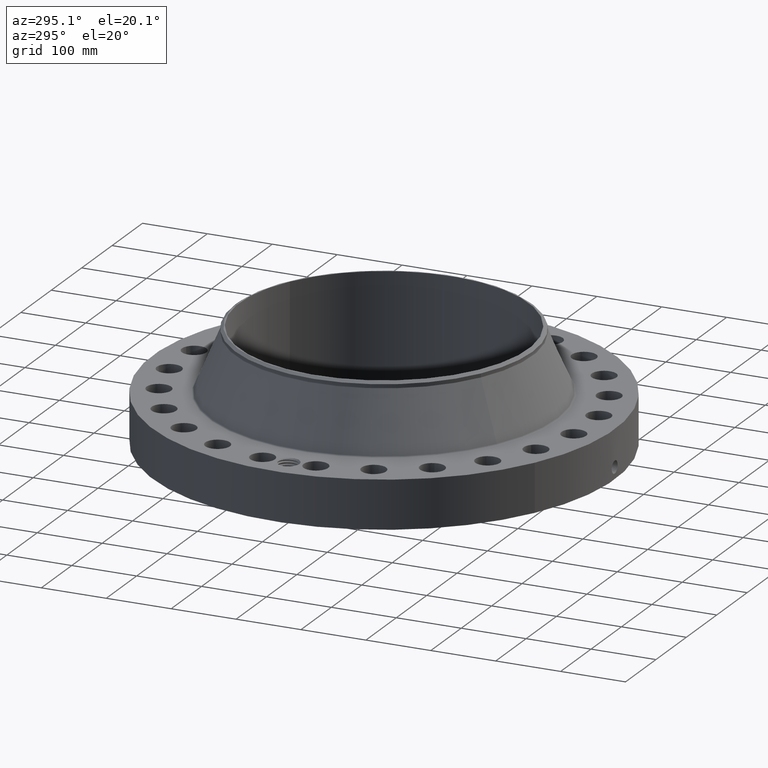
[diagram: clean part render]
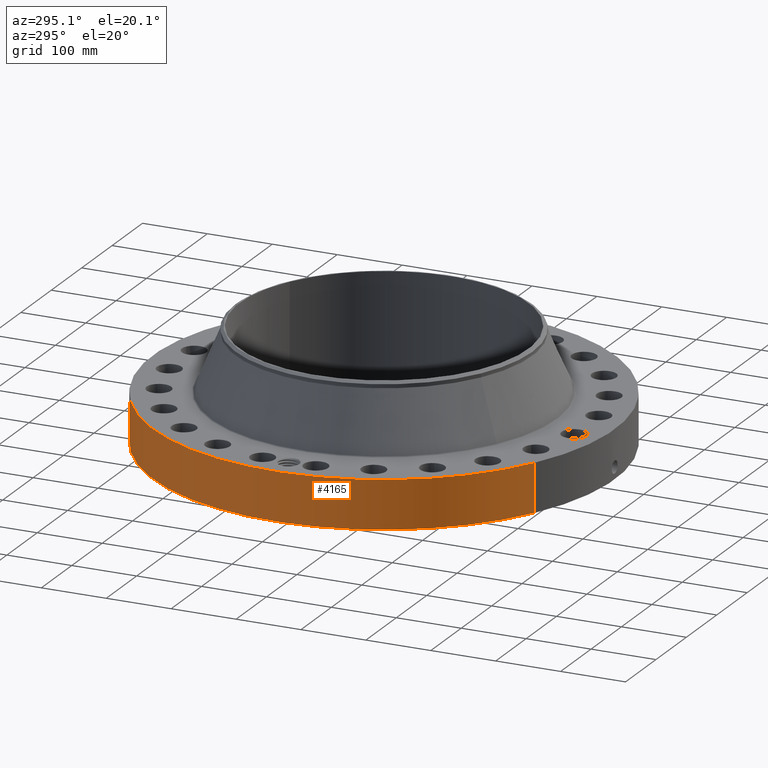
[diagram: same view with one face highlighted and labeled with its STEP entity id]
A machine part, auxiliary view. The second image highlights one B-rep face of the part: STEP entity #4165.
In plain terms, the highlighted cylindrical surface (partial cylindrical patch) has radius 355.6 mm, axis along (0, 0, -1).
Its self-contained STEP definition (entity closure, byte-faithful):
#2927=AXIS2_PLACEMENT_3D('Circle Axis2P3D',#2925,#2926,$) ;
#4051=AXIS2_PLACEMENT_3D('Cylinder Axis2P3D',#4048,#4049,#4050) ;
#4055=AXIS2_PLACEMENT_3D('Circle Axis2P3D',#4053,#4054,$) ;
#2920=CARTESIAN_POINT('Vertex',(6.71195754049,12.2861558665,2.93200000001)) ;
#2922=CARTESIAN_POINT('Vertex',(-6.71195754049,-12.2861558665,2.93200000001)) ;
#2925=CARTESIAN_POINT('Axis2P3D Location',(0.,0.,2.93200000001)) ;
#4048=CARTESIAN_POINT('Axis2P3D Location',(0.,0.,3.40600000001)) ;
#4053=CARTESIAN_POINT('Axis2P3D Location',(0.,0.,1.67844740731E-015)) ;
#4057=CARTESIAN_POINT('Vertex',(-6.71195754049,-12.2861558665,1.67844740731E-015)) ;
#4059=CARTESIAN_POINT('Vertex',(6.71195754049,12.2861558665,1.67844740731E-015)) ;
#4062=CARTESIAN_POINT('Line Origine',(-6.71195754049,-12.2861558665,1.46600000001)) ;
#4067=CARTESIAN_POINT('Line Origine',(6.71195754049,12.2861558665,1.46600000001)) ;
#4079=CARTESIAN_POINT('Control Point',(-0.000716127765172,13.9999999817,1.1041184611)) ;
#4080=CARTESIAN_POINT('Control Point',(-0.0190757983389,13.9999990426,1.10408137441)) ;
#4081=CARTESIAN_POINT('Control Point',(-0.0374322413143,13.9999616996,1.10261237373)) ;
#4082=CARTESIAN_POINT('Control Point',(-0.0555638915009,13.9998897373,1.09972937867)) ;
#4083=CARTESIAN_POINT('Vertex',(-0.000715743932358,13.9999999818,1.10411851041)) ;
#4085=CARTESIAN_POINT('Vertex',(-0.0555549451581,13.9998900259,1.09973081964)) ;
#4089=CARTESIAN_POINT('Control Point',(-0.0555548490816,13.9998897731,1.09973026908)) ;
#4090=CARTESIAN_POINT('Control Point',(-0.0958938296653,13.9997296986,1.09526506922)) ;
#4091=CARTESIAN_POINT('Control Point',(-0.135581536139,13.9993911749,1.08345851699)) ;
#4092=CARTESIAN_POINT('Control Point',(-0.172124900836,13.9989418536,1.06510326735)) ;
#4093=CARTESIAN_POINT('Vertex',(-0.172124900836,13.9989418536,1.06510326735)) ;
#4097=CARTESIAN_POINT('Control Point',(-0.0309215004358,13.9999658522,0.341182267607)) ;
#4098=CARTESIAN_POINT('Control Point',(-0.10016639452,13.9998129121,0.349950591882)) ;
#4099=CARTESIAN_POINT('Control Point',(-0.16707920328,13.9992370076,0.374143798891)) ;
#4100=CARTESIAN_POINT('Control Point',(-0.226861916915,13.9983036346,0.41294641872)) ;
#4101=CARTESIAN_POINT('Control Point',(-0.299410362566,13.9968606616,0.48699265065)) ;
#4102=CARTESIAN_POINT('Control Point',(-0.344252863732,13.9957762929,0.577303564911)) ;
#4103=CARTESIAN_POINT('Control Point',(-0.355712949588,13.9954842687,0.60801091676)) ;
#4104=CARTESIAN_POINT('Control Point',(-0.374230289493,13.9950011291,0.679287869999)) ;
#4105=CARTESIAN_POINT('Control Point',(-0.37590203947,13.9949509828,0.752614503434)) ;
#4106=CARTESIAN_POINT('Control Point',(-0.37152017949,13.9950715433,0.79322277755)) ;
#4107=CARTESIAN_POINT('Control Point',(-0.3490383611,13.9956736799,0.885717409792)) ;
#4108=CARTESIAN_POINT('Control Point',(-0.299568268458,13.996842528,0.967115530402)) ;
#4109=CARTESIAN_POINT('Control Point',(-0.263036006092,13.9976212518,1.00806553026)) ;
#4110=CARTESIAN_POINT('Control Point',(-0.219778089784,13.9983559307,1.0411676964)) ;
#4111=CARTESIAN_POINT('Control Point',(-0.172124900836,13.9989418536,1.06510326735)) ;
#4112=CARTESIAN_POINT('Vertex',(-0.0309215004358,13.9999658522,0.341182267607)) ;
#4116=CARTESIAN_POINT('Control Point',(-0.0309215004358,13.9999658522,0.341182267607)) ;
#4117=CARTESIAN_POINT('Control Point',(-0.0206093350718,13.9999886285,0.340873555469)) ;
#4118=CARTESIAN_POINT('Control Point',(-0.0102899336327,14.0000000021,0.340937863188)) ;
#4119=CARTESIAN_POINT('Control Point',(2.72878355401E-006,14.0000000001,0.341374667805)) ;
#4120=CARTESIAN_POINT('Vertex',(2.72878354121E-006,14.0000000001,0.341374667805)) ;
#4124=CARTESIAN_POINT('Control Point',(0.192703589045,13.9986736989,0.39726939377)) ;
#4125=CARTESIAN_POINT('Control Point',(0.14903557021,13.9992748261,0.371955714082)) ;
#4126=CARTESIAN_POINT('Control Point',(0.101122045121,13.9997535108,0.35375040722)) ;
#4127=CARTESIAN_POINT('Control Point',(0.0508078024433,13.9999999902,0.343530755533)) ;
#4128=CARTESIAN_POINT('Control Point',(2.72878355399E-006,14.0000000001,0.341374667805)) ;
#4129=CARTESIAN_POINT('Vertex',(0.192703589045,13.9986736989,0.39726939377)) ;
#4133=CARTESIAN_POINT('Control Point',(0.192703589045,13.9986736989,0.39726939377)) ;
#4134=CARTESIAN_POINT('Control Point',(0.249588141116,13.9978906349,0.430244491915)) ;
#4135=CARTESIAN_POINT('Control Point',(0.299738781304,13.9969112714,0.474526544599)) ;
#4136=CARTESIAN_POINT('Control Point',(0.340016084283,13.9959144375,0.528593013715)) ;
#4137=CARTESIAN_POINT('Control Point',(0.384401903701,13.9947324549,0.626721002426)) ;
#4138=CARTESIAN_POINT('Control Point',(0.393085692121,13.9944790205,0.732012567469)) ;
#4139=CARTESIAN_POINT('Control Point',(0.391005823832,13.9945390528,0.772144914977)) ;
#4140=CARTESIAN_POINT('Control Point',(0.376915952177,13.9949387529,0.847014945362)) ;
#4141=CARTESIAN_POINT('Control Point',(0.344864409188,13.995765604,0.91542258758)) ;
#4142=CARTESIAN_POINT('Control Point',(0.325823254922,13.9962322051,0.945842823989)) ;
#4143=CARTESIAN_POINT('Control Point',(0.264021728335,13.9976173448,1.02245044818)) ;
#4144=CARTESIAN_POINT('Control Point',(0.180761909165,13.998996639,1.07554895626)) ;
#4145=CARTESIAN_POINT('Control Point',(0.121808147183,13.9996739848,1.0976552982)) ;
#4146=CARTESIAN_POINT('Control Point',(0.0604215643395,14.0000001117,1.1071166251)) ;
#4147=CARTESIAN_POINT('Control Point',(-2.58579355216E-005,14.,1.1041529843)) ;
#4148=CARTESIAN_POINT('Vertex',(-2.58579355465E-005,14.,1.1041529843)) ;
#4152=CARTESIAN_POINT('Control Point',(-0.000715743922712,13.9999999818,1.10411851039)) ;
#4153=CARTESIAN_POINT('Control Point',(-0.000370825420103,13.9999999994,1.1041360711)) ;
#4154=CARTESIAN_POINT('Control Point',(-2.58579407E-005,14.,1.1041529843)) ;
#2926=DIRECTION('Axis2P3D Direction',(0.,0.,-0.0393700787402)) ;
#4049=DIRECTION('Axis2P3D Direction',(0.,0.,-0.0393700787402)) ;
#4050=DIRECTION('Axis2P3D XDirection',(0.0188750212049,0.0345504945626,0.)) ;
#4054=DIRECTION('Axis2P3D Direction',(0.,0.,-0.0393700787402)) ;
#4063=DIRECTION('Vector Direction',(0.,0.,-0.0393700787402)) ;
#4068=DIRECTION('Vector Direction',(0.,0.,-0.0393700787402)) ;
#4064=VECTOR('Line Direction',#4063,0.0393700787402) ;
#4069=VECTOR('Line Direction',#4068,0.0393700787402) ;
#4073=ORIENTED_EDGE('',*,*,#4061,.F.) ;
#4074=ORIENTED_EDGE('',*,*,#4066,.T.) ;
#4075=ORIENTED_EDGE('',*,*,#2929,.T.) ;
#4076=ORIENTED_EDGE('',*,*,#4071,.F.) ;
#4157=ORIENTED_EDGE('',*,*,#4087,.T.) ;
#4158=ORIENTED_EDGE('',*,*,#4095,.T.) ;
#4159=ORIENTED_EDGE('',*,*,#4114,.F.) ;
#4160=ORIENTED_EDGE('',*,*,#4122,.T.) ;
#4161=ORIENTED_EDGE('',*,*,#4131,.F.) ;
#4162=ORIENTED_EDGE('',*,*,#4150,.T.) ;
#4163=ORIENTED_EDGE('',*,*,#4155,.F.) ;
#4164=FACE_BOUND('',#4156,.T.) ;
#4165=ADVANCED_FACE('PartBody',(#4077,#4164),#4052,.T.) ;
#4078=B_SPLINE_CURVE_WITH_KNOTS('',3,(#4079,#4080,#4081,#4082),.UNSPECIFIED.,.F.,.U.,(4,4),(34.6165208752,36.6533523405),.UNSPECIFIED.) ;
#4088=B_SPLINE_CURVE_WITH_KNOTS('',3,(#4089,#4090,#4091,#4092),.UNSPECIFIED.,.F.,.U.,(4,4),(0.,4.5603248192),.UNSPECIFIED.) ;
#4096=B_SPLINE_CURVE_WITH_KNOTS('',5,(#4097,#4098,#4099,#4100,#4101,#4102,#4103,#4104,#4105,#4106,#4107,#4108,#4109,#4110,#4111),.UNSPECIFIED.,.F.,.U.,(6,3,3,3,6),(0.,12.1301119269,17.9857306561,25.3556969156,35.2669365236),.UNSPECIFIED.) ;
#4115=B_SPLINE_CURVE_WITH_KNOTS('',3,(#4116,#4117,#4118,#4119),.UNSPECIFIED.,.F.,.U.,(4,4),(0.,1.0757036039),.UNSPECIFIED.) ;
#4123=B_SPLINE_CURVE_WITH_KNOTS('',4,(#4124,#4125,#4126,#4127,#4128),.UNSPECIFIED.,.F.,.U.,(5,5),(0.,7.07963253464),.UNSPECIFIED.) ;
#4132=B_SPLINE_CURVE_WITH_KNOTS('',5,(#4133,#4134,#4135,#4136,#4137,#4138,#4139,#4140,#4141,#4142,#4143,#4144,#4145,#4146,#4147),.UNSPECIFIED.,.F.,.U.,(6,3,3,3,6),(0.,11.5279364473,18.5943609696,25.0081378992,36.3070156046),.UNSPECIFIED.) ;
#4151=B_SPLINE_CURVE_WITH_KNOTS('',2,(#4152,#4153,#4154),.UNSPECIFIED.,.F.,.U.,(3,3),(1.02463481524,1.05042744884),.UNSPECIFIED.) ;
#2928=CIRCLE('generated circle',#2927,14.0000000001) ;
#4056=CIRCLE('generated circle',#4055,14.0000000001) ;
#4052=CYLINDRICAL_SURFACE('generated cylinder',#4051,14.0000000001) ;
#2929=EDGE_CURVE('',#2923,#2921,#2928,.T.) ;
#4061=EDGE_CURVE('',#4058,#4060,#4056,.T.) ;
#4066=EDGE_CURVE('',#4058,#2923,#4065,.F.) ;
#4071=EDGE_CURVE('',#4060,#2921,#4070,.F.) ;
#4087=EDGE_CURVE('',#4084,#4086,#4078,.T.) ;
#4095=EDGE_CURVE('',#4086,#4094,#4088,.T.) ;
#4114=EDGE_CURVE('',#4113,#4094,#4096,.T.) ;
#4122=EDGE_CURVE('',#4113,#4121,#4115,.T.) ;
#4131=EDGE_CURVE('',#4130,#4121,#4123,.T.) ;
#4150=EDGE_CURVE('',#4130,#4149,#4132,.T.) ;
#4155=EDGE_CURVE('',#4084,#4149,#4151,.T.) ;
#4072=EDGE_LOOP('',(#4073,#4074,#4075,#4076)) ;
#4156=EDGE_LOOP('',(#4157,#4158,#4159,#4160,#4161,#4162,#4163)) ;
#4077=FACE_OUTER_BOUND('',#4072,.T.) ;
#4065=LINE('Line',#4062,#4064) ;
#4070=LINE('Line',#4067,#4069) ;
#2921=VERTEX_POINT('',#2920) ;
#2923=VERTEX_POINT('',#2922) ;
#4058=VERTEX_POINT('',#4057) ;
#4060=VERTEX_POINT('',#4059) ;
#4084=VERTEX_POINT('',#4083) ;
#4086=VERTEX_POINT('',#4085) ;
#4094=VERTEX_POINT('',#4093) ;
#4113=VERTEX_POINT('',#4112) ;
#4121=VERTEX_POINT('',#4120) ;
#4130=VERTEX_POINT('',#4129) ;
#4149=VERTEX_POINT('',#4148) ;